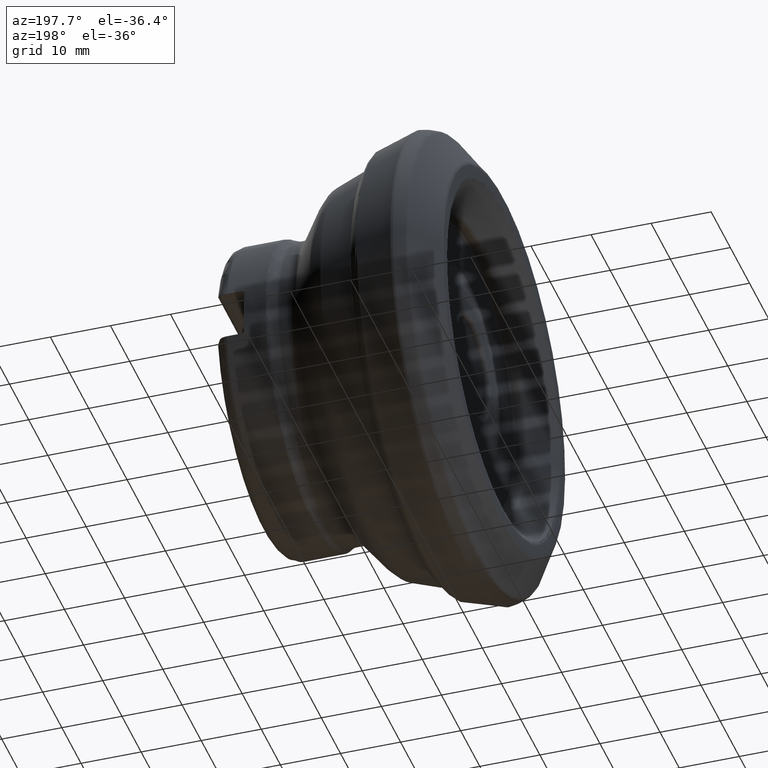
[diagram: clean part render]
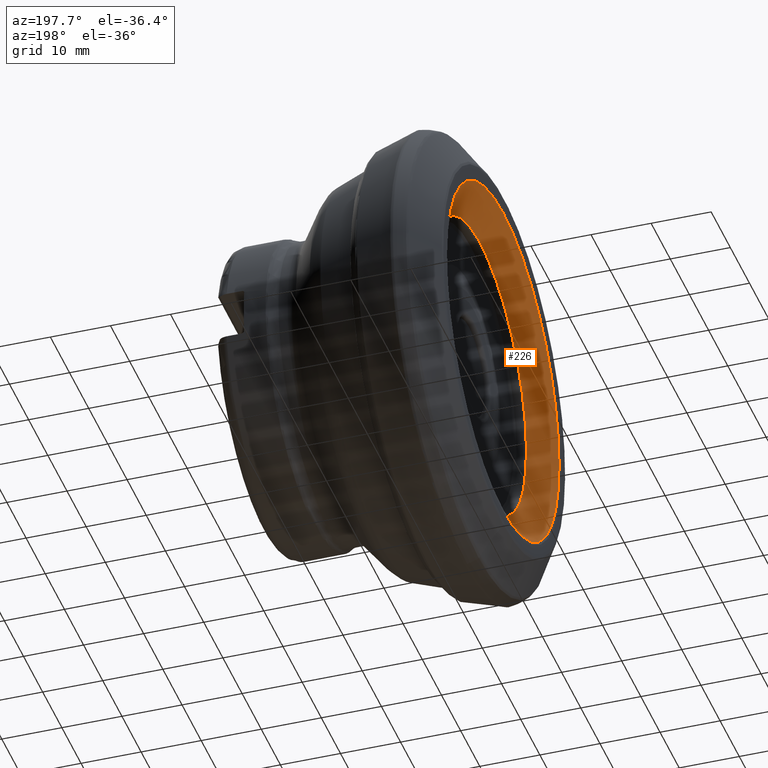
[diagram: same view with one face highlighted and labeled with its STEP entity id]
A machine part, auxiliary view. The second image highlights one B-rep face of the part: STEP entity #226.
In plain terms, the highlighted face is a SurfaceOfRevolution surface.
Its self-contained STEP definition (entity closure, byte-faithful):
#226=ADVANCED_FACE('',(#393,#394),#295,.F.);
#295=SURFACE_OF_REVOLUTION('',#339,#317);
#317=AXIS1_PLACEMENT('',#1480,#1197);
#339=B_SPLINE_CURVE_WITH_KNOTS('',3,(#1475,#1476,#1477,#1478,#1479),
 .UNSPECIFIED.,.F.,.F.,(4,1,4),(0.,0.5,1.),.UNSPECIFIED.);
#393=FACE_BOUND('',#483,.T.);
#394=FACE_BOUND('',#484,.T.);
#483=EDGE_LOOP('',(#597));
#484=EDGE_LOOP('',(#598));
#597=ORIENTED_EDGE('',*,*,#905,.T.);
#598=ORIENTED_EDGE('',*,*,#906,.F.);
#816=VERTEX_POINT('',#1466);
#817=VERTEX_POINT('',#1474);
#905=EDGE_CURVE('',#816,#816,#1016,.T.);
#906=EDGE_CURVE('',#817,#817,#1017,.T.);
#1016=CIRCLE('',#1076,24.2472222115755);
#1017=CIRCLE('',#1077,29.2576377297932);
#1076=AXIS2_PLACEMENT_3D('',#1465,#1192,#1193);
#1077=AXIS2_PLACEMENT_3D('',#1473,#1195,#1196);
#1192=DIRECTION('',(1.,0.,0.));
#1193=DIRECTION('',(0.,0.,-1.));
#1195=DIRECTION('',(1.,0.,0.));
#1196=DIRECTION('',(0.,0.,-1.));
#1197=DIRECTION('',(1.,0.,0.));
#1465=CARTESIAN_POINT('',(4.01896603602087,0.,0.));
#1466=CARTESIAN_POINT('',(4.01896603602087,0.,-24.2472222115755));
#1473=CARTESIAN_POINT('',(0.187348895711292,0.,0.));
#1474=CARTESIAN_POINT('',(0.187348895711292,0.,-29.2576377297932));
#1475=CARTESIAN_POINT('',(0.187348895711285,-28.8377044081485,4.93924791806103));
#1476=CARTESIAN_POINT('',(0.846618438660372,-27.9781730179896,4.82853304205722));
#1477=CARTESIAN_POINT('',(2.15925495847565,-26.2289803787217,4.80965684820327));
#1478=CARTESIAN_POINT('',(3.41579398568135,-24.4798466641015,5.1896210598036));
#1479=CARTESIAN_POINT('',(4.01896603602087,-23.6203741985904,5.47774658925408));
#1480=CARTESIAN_POINT('',(0.,0.,0.));